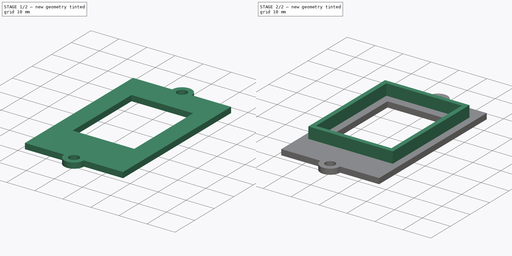
[diagram: build sequence overview — one tinted view per stage of 2, left to right]
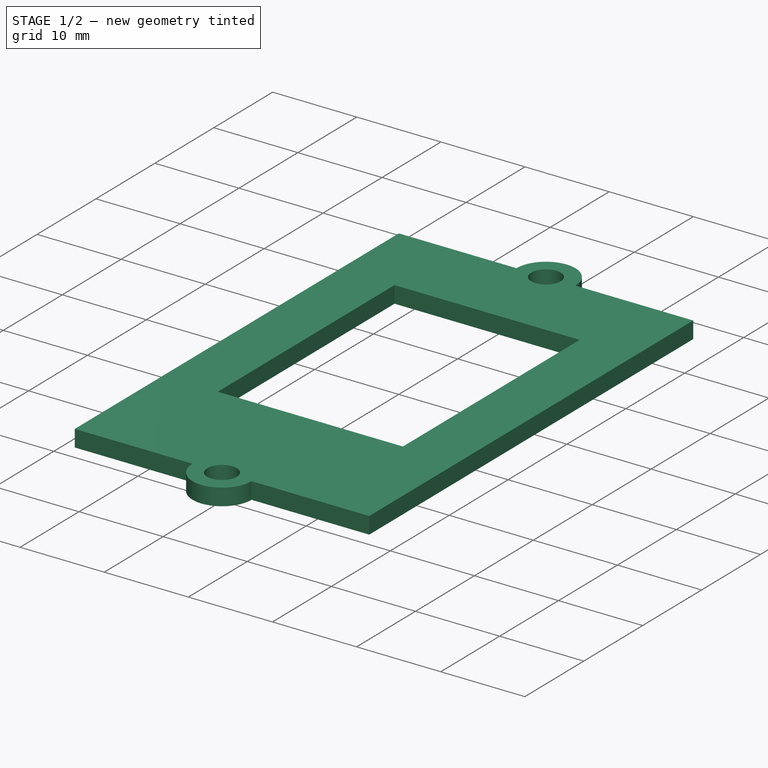
[diagram: stage 1 of 2 — iso view after this stage's code; geometry added in this stage tinted green]
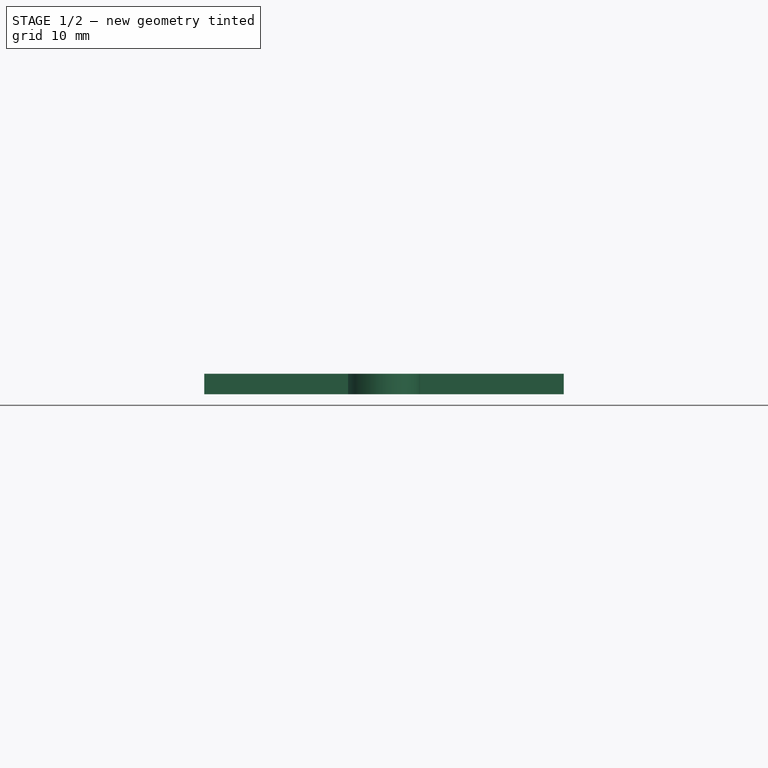
[diagram: stage 1 of 2 — front view after this stage's code; geometry added in this stage tinted green]
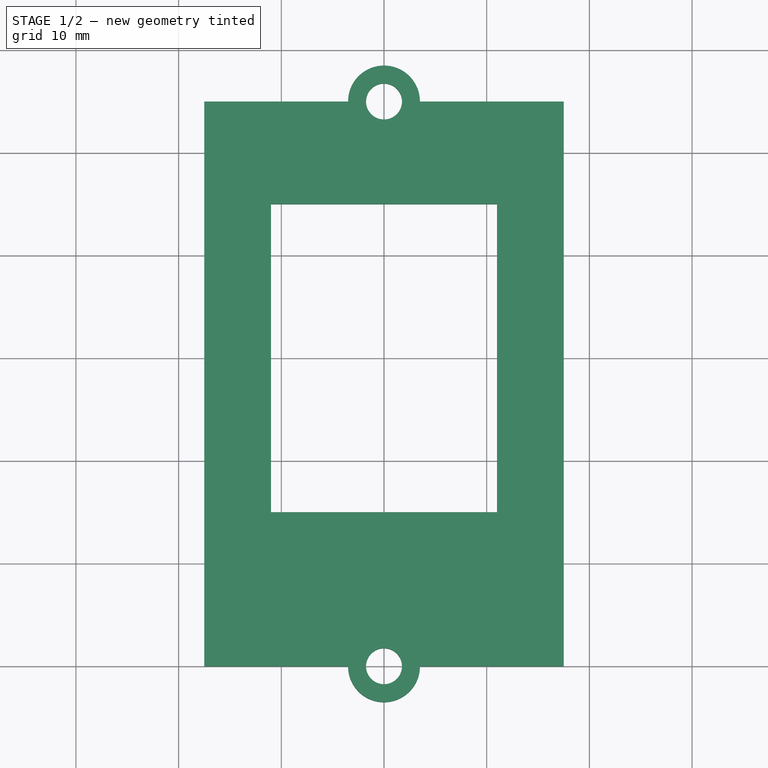
[diagram: stage 1 of 2 — top view after this stage's code; geometry added in this stage tinted green]
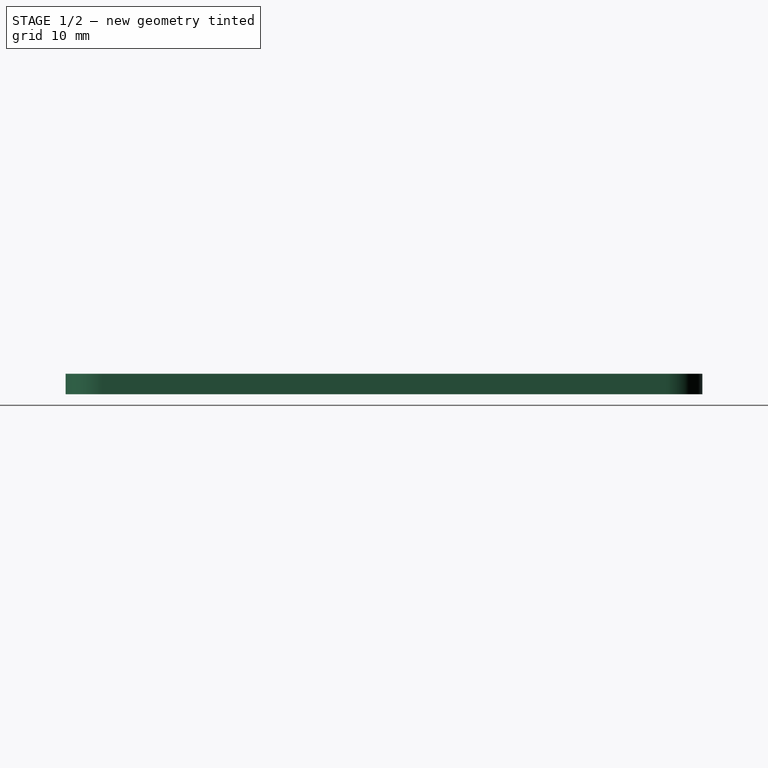
[diagram: stage 1 of 2 — right view after this stage's code; geometry added in this stage tinted green]
FCSTD DOCUMENT  (FreeCAD 0.20R29177 (Git))
Label: LCD-1.28inch-Top
License: All rights reserved
LicenseURL: http://en.wikipedia.org/wiki/All_rights_reserved
objects: App::DocumentObjectGroup×3, PartDesign::CoordinateSystem×2, Sketcher::SketchObject×2, PartDesign::Pad×2, App::FeaturePython×1, PartDesign::Body×1, App::Part×1
note: 9 computed .brp shape members not serialized (recipe doc carries the construction recipe); baked Part::Feature solids carry a one-line shape summary decoded from their .brp

FEATURE [App::DocumentObjectGroup] Parts
FEATURE [PartDesign::CoordinateSystem] LCS_Origin
  AttacherType = Attacher::AttachEngine3D
  MapMode = 2
  Support = -> [X_Axis]
FEATURE [App::DocumentObjectGroup] Constraints
FEATURE [App::FeaturePython] Variables  # WARN: FeaturePython — macro-defined, semantics opaque (R4)
  Type = App::PropertyContainer
FEATURE [App::DocumentObjectGroup] Configurations
FEATURE [PartDesign::CoordinateSystem] LCS_0
  AttacherType = Attacher::AttachEngine3D
  MapMode = 2
  Support = -> [X_Axis001]
FEATURE [Sketcher::SketchObject] Sketch
  FullyConstrained = true
  MapMode = 5
  Support = -> [XY_Plane001]
  sketch-geometry (14):
    g0: ArcOfCircle CenterX=0 CenterY=25 CenterZ=0 NormalX=0 NormalY=0 NormalZ=1 AngleXU=0 Radius=3.5 StartAngle=0 EndAngle=3.14159
    g1: ArcOfCircle CenterX=0 CenterY=-30 CenterZ=0 NormalX=0 NormalY=0 NormalZ=1 AngleXU=0 Radius=3.5 StartAngle=3.14159 EndAngle=6.28319
    g2: LineSegment StartX=-11 StartY=15 StartZ=0 EndX=11 EndY=15 EndZ=0
    g3: LineSegment StartX=11 StartY=15 StartZ=0 EndX=11 EndY=-15 EndZ=0
    g4: LineSegment StartX=11 StartY=-15 StartZ=0 EndX=-11 EndY=-15 EndZ=0
    g5: LineSegment StartX=-11 StartY=-15 StartZ=0 EndX=-11 EndY=15 EndZ=0
    g6: Circle CenterX=0 CenterY=25 CenterZ=0 NormalX=0 NormalY=0 NormalZ=1 AngleXU=0 Radius=1.75
    g7: Circle CenterX=0 CenterY=-30 CenterZ=0 NormalX=0 NormalY=0 NormalZ=1 AngleXU=0 Radius=1.75
    g8: LineSegment StartX=-3.5 StartY=25 StartZ=0 EndX=-17.5 EndY=25 EndZ=0
    g9: LineSegment StartX=-17.5 StartY=25 StartZ=0 EndX=-17.5 EndY=-30 EndZ=0
    g10: LineSegment StartX=-17.5 StartY=-30 StartZ=0 EndX=-3.5 EndY=-30 EndZ=0
    g11: LineSegment StartX=3.5 StartY=-30 StartZ=0 EndX=17.5 EndY=-30 EndZ=0
    g12: LineSegment StartX=17.5 StartY=-30 StartZ=0 EndX=17.5 EndY=25 EndZ=0
    g13: LineSegment StartX=17.5 StartY=25 StartZ=0 EndX=3.5 EndY=25 EndZ=0
  constraints (41):
    c: PointOnObject(g0,g-2)
    c: PointOnObject(g1,g-2)
    c: Coincident(g2,g3)
    c: Coincident(g3,g4)
    c: Coincident(g4,g5)
    c: Coincident(g5,g2)
    c: Horizontal(g2)
    c: Horizontal(g4)
    c: Vertical(g3)
    c: Vertical(g5)
    c: Horizontal(g0,g0)
    c: Coincident(g6,g0)
    c: Diameter(g6) = 3.5
    c: Diameter(g0) = 7
    c: Equal(g0,g1)
    c: Horizontal(g1,g1)
    c: Coincident(g7,g1)
    c: Equal(g7,g6)
    c: DistanceX(g4,g4) = 22
    c: Symmetric(g3,g2,g-1)
    c: DistanceY(g3,g3) = 30
    c: Horizontal(g1,g1)
    c: Coincident(g8,g0)
    c: Horizontal(g8)
    c: Coincident(g9,g8)
    c: Vertical(g9)
    c: Coincident(g10,g9)
    c: Horizontal(g10)
    c: Coincident(g11,g1)
    c: Horizontal(g11)
    c: Coincident(g12,g11)
    c: Vertical(g12)
    c: Coincident(g13,g12)
    c: Coincident(g13,g0)
    c: Horizontal(g13)
    c: Coincident(g10,g1)
    c: DistanceX(g9,g11) = 35
    c: Horizontal(g0,g0)
    c: DistanceY(g-1,g8) = 25
    c: DistanceX(g8,g-1) = 17.5
    c: DistanceY(g9,g-1) = 30
FEATURE [PartDesign::Pad] Pad  label="Plate"
  Direction = (0,0,1)
  Length = 2
  Length2 = 10
  Profile = -> Sketch
  ReferenceAxis = -> Sketch [N_Axis]
  Type = 0
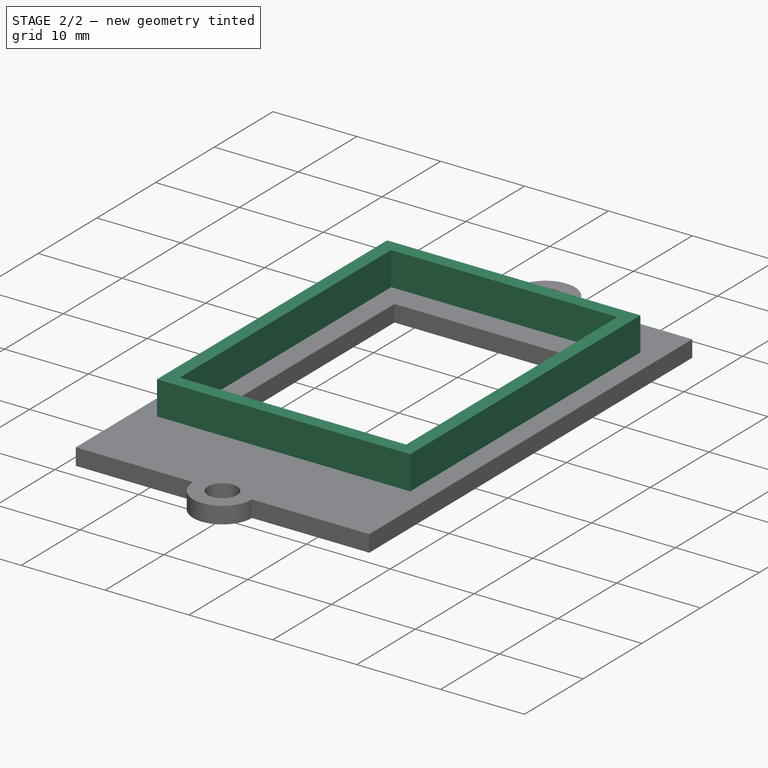
[diagram: stage 2 of 2 — iso view after this stage's code; geometry added in this stage tinted green]
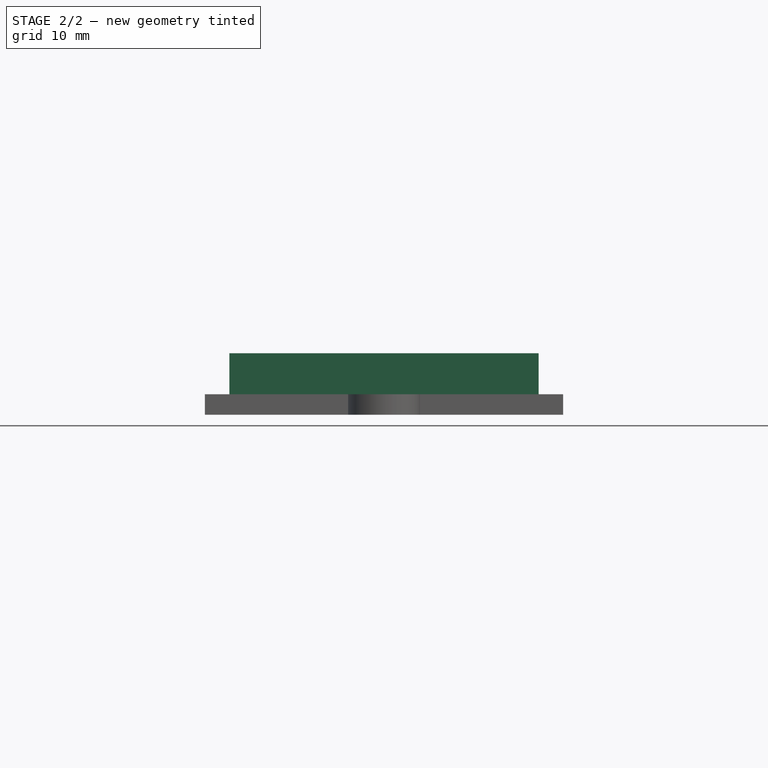
[diagram: stage 2 of 2 — front view after this stage's code; geometry added in this stage tinted green]
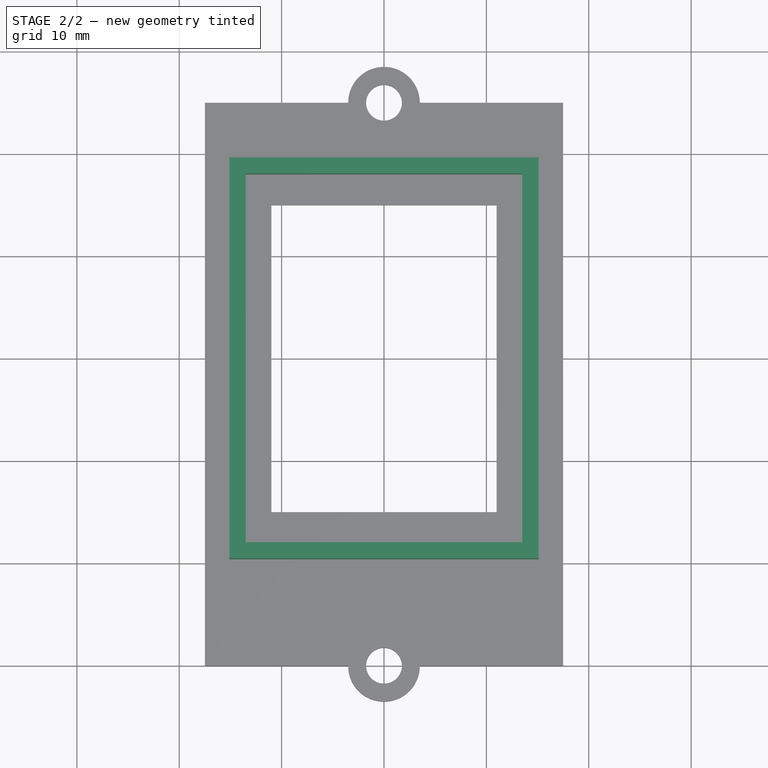
[diagram: stage 2 of 2 — top view after this stage's code; geometry added in this stage tinted green]
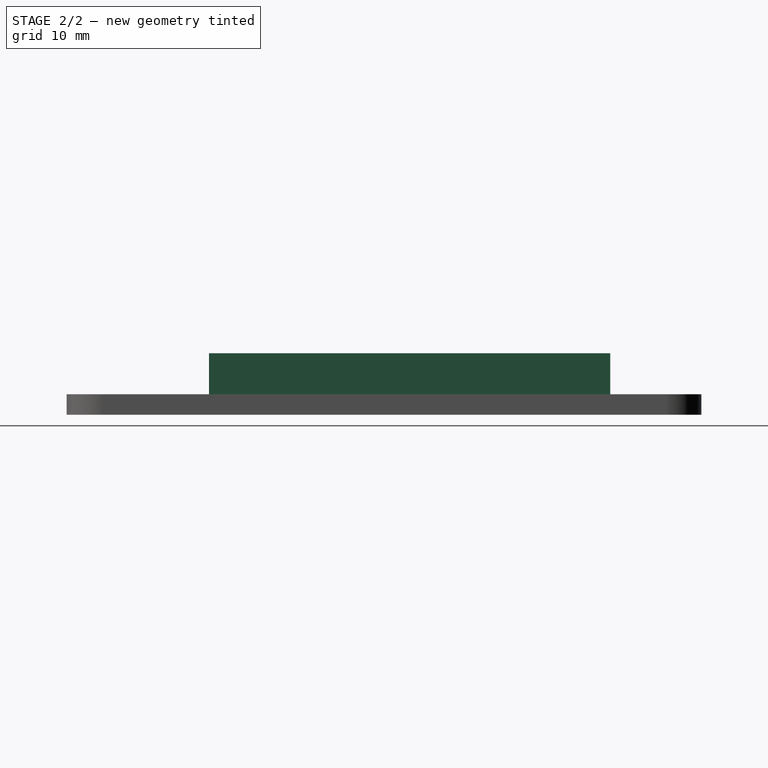
[diagram: stage 2 of 2 — right view after this stage's code; geometry added in this stage tinted green]
FEATURE [Sketcher::SketchObject] Sketch001
  FullyConstrained = true
  MapMode = 5
  Support = -> [XY_Plane001]
  sketch-geometry (8):
    g0: LineSegment StartX=-15.1 StartY=19.6 StartZ=0 EndX=15.1 EndY=19.6 EndZ=0
    g1: LineSegment StartX=15.1 StartY=19.6 StartZ=0 EndX=15.1 EndY=-19.6 EndZ=0
    g2: LineSegment StartX=15.1 StartY=-19.6 StartZ=0 EndX=-15.1 EndY=-19.6 EndZ=0
    g3: LineSegment StartX=-15.1 StartY=-19.6 StartZ=0 EndX=-15.1 EndY=19.6 EndZ=0
    g4: LineSegment StartX=-13.5 StartY=18 StartZ=0 EndX=13.5 EndY=18 EndZ=0
    g5: LineSegment StartX=13.5 StartY=18 StartZ=0 EndX=13.5 EndY=-18 EndZ=0
    g6: LineSegment StartX=13.5 StartY=-18 StartZ=0 EndX=-13.5 EndY=-18 EndZ=0
    g7: LineSegment StartX=-13.5 StartY=-18 StartZ=0 EndX=-13.5 EndY=18 EndZ=0
  constraints (22):
    c: Coincident(g0,g1)
    c: Coincident(g1,g2)
    c: Coincident(g2,g3)
    c: Coincident(g3,g0)
    c: Horizontal(g0)
    c: Horizontal(g2)
    c: Vertical(g1)
    c: Vertical(g3)
    c: Coincident(g4,g5)
    c: Coincident(g5,g6)
    c: Coincident(g6,g7)
    c: Coincident(g7,g4)
    c: Horizontal(g4)
    c: Horizontal(g6)
    c: Vertical(g5)
    c: Vertical(g7)
    c: Symmetric(g0,g1,g-1)
    c: Symmetric(g4,g5,g-1)
    c: DistanceX(g0,g4) = 1.6
    c: DistanceY(g4,g0) = 1.6
    c: DistanceX(g4,g-1) = 13.5
    c: DistanceY(g6,g-1) = 18
FEATURE [PartDesign::Pad] Pad001  label="Reinforcement"
  BaseFeature = -> Pad
  Direction = (0,0,1)
  Length = 6
  Length2 = 10
  Profile = -> Sketch001
  ReferenceAxis = -> Sketch001 [N_Axis]
  Type = 0
FEATURE [PartDesign::Body] Body
  Group = -> [LCS_0,Sketch,Pad,Sketch001,Pad001]
  Origin = -> Origin001
  Tip = -> Pad001
FEATURE [App::Part] Model
  AssemblyType = Part::Link
  Group = -> [LCS_Origin,Constraints,Variables,Configurations,Body]
  Origin = -> Origin
  Type = Assembly
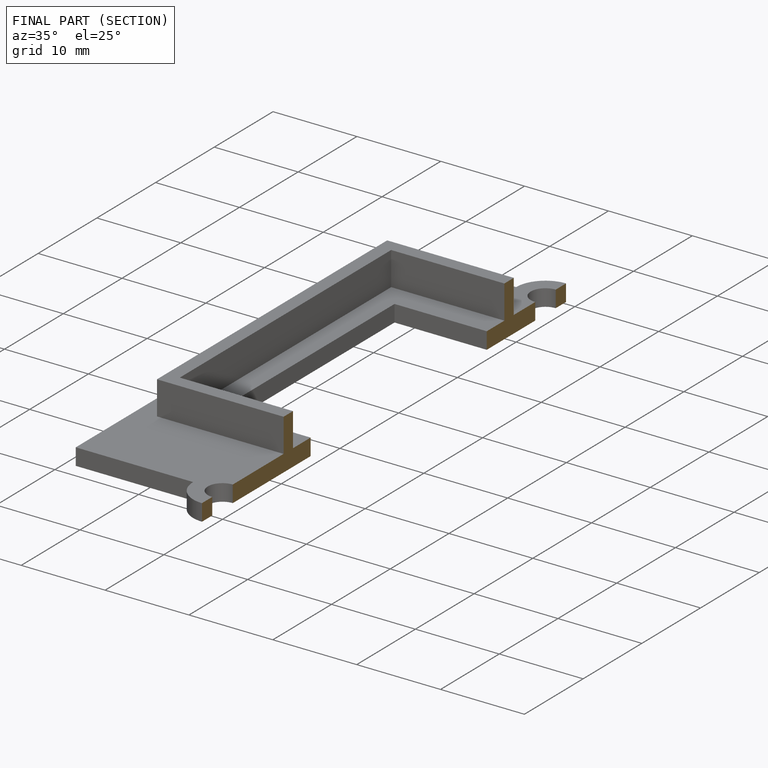
[diagram: finished part — half-section view (interior)]
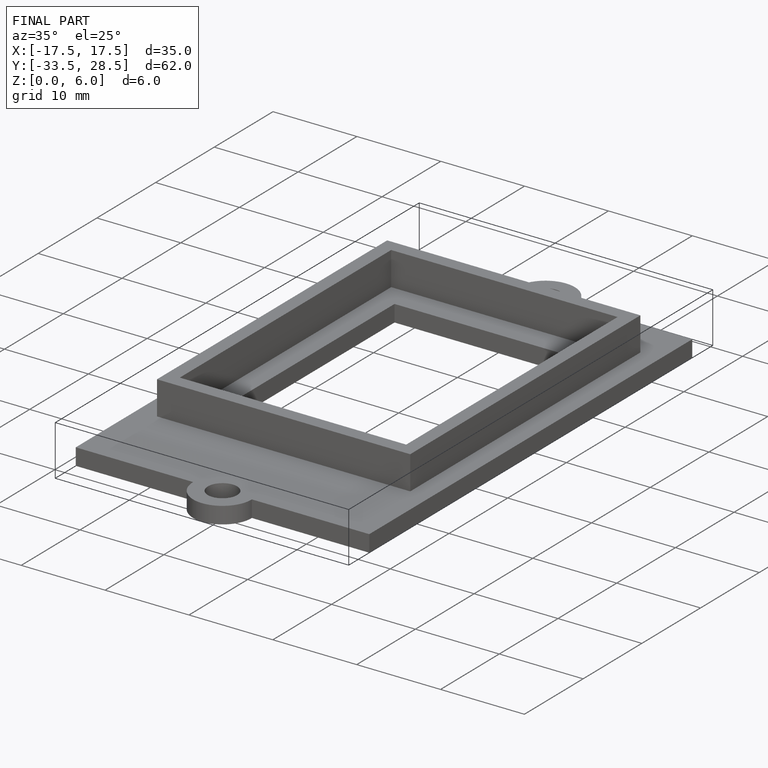
[diagram: finished part — iso view with bounding-box wireframe]
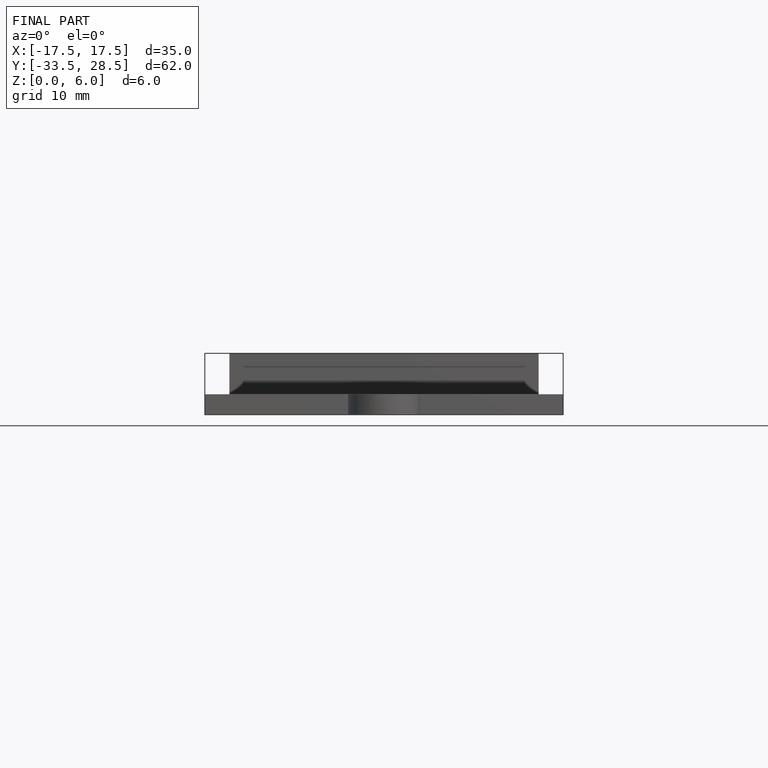
[diagram: finished part — front view with bounding-box wireframe]
